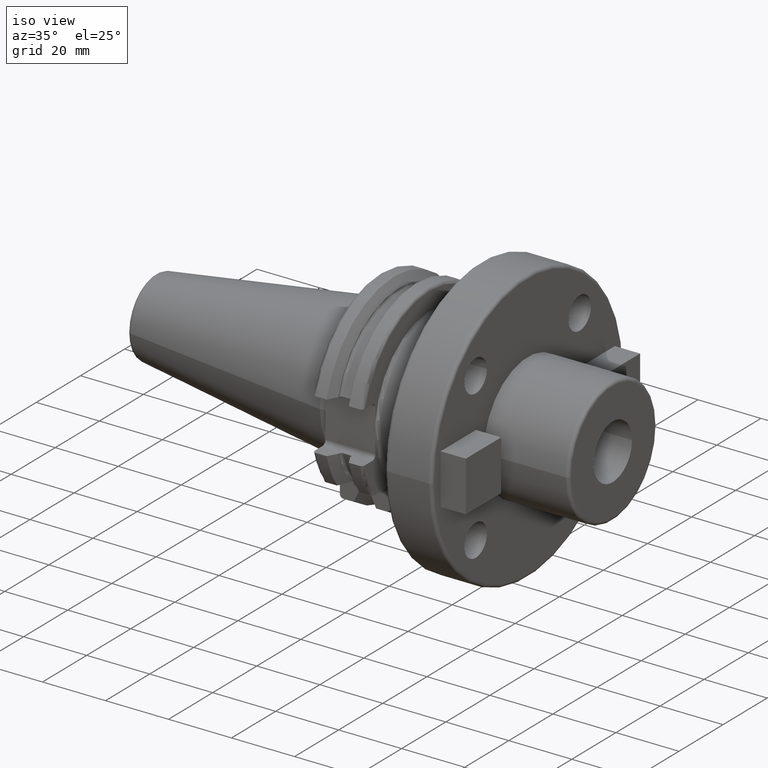
[diagram: clean part render]
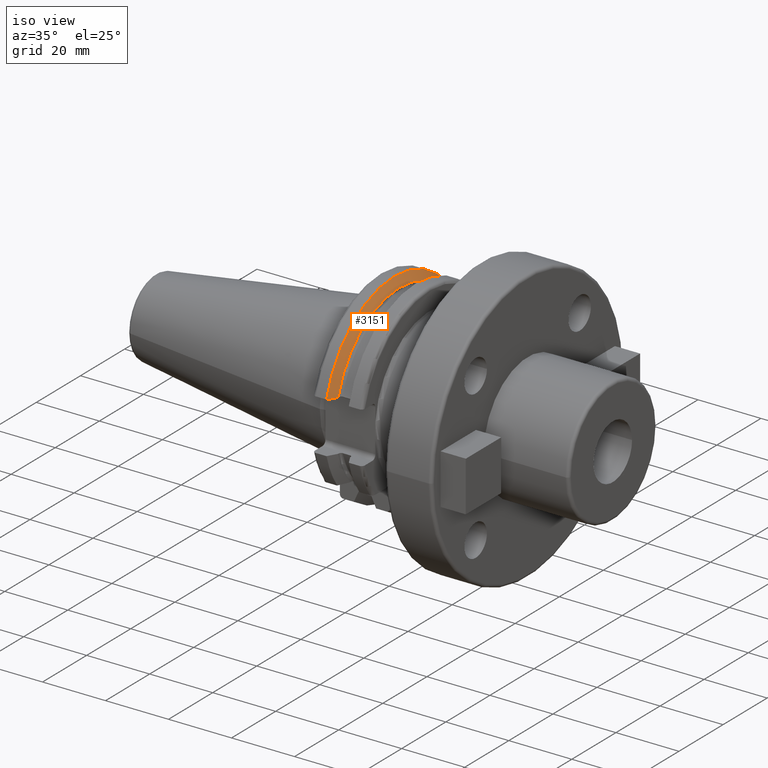
[diagram: same view with one face highlighted and labeled with its STEP entity id]
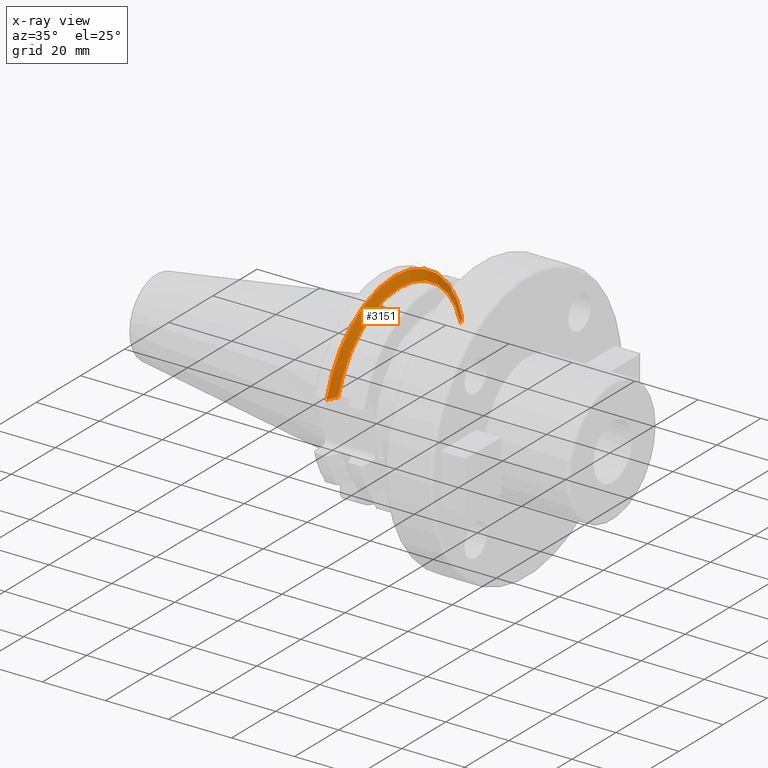
[diagram: x-ray of the same camera — body ghosted, the highlighted face saturated]
A machine part, iso view. The second image highlights one B-rep face of the part: STEP entity #3151.
The next image is the same camera in x-ray: the body ghosted, the highlighted face saturated — about 7% of this face is hidden behind the body in this view.
In plain terms, the highlighted conical surface has half-angle 60 deg.
Its self-contained STEP definition (entity closure, byte-faithful):
#871=CARTESIAN_POINT('',(7.645946479578E0,0.E0,0.E0));
#872=DIRECTION('',(1.E0,0.E0,0.E0));
#873=DIRECTION('',(0.E0,9.669363825036E-1,2.550177095632E-1));
#874=AXIS2_PLACEMENT_3D('',#871,#872,#873);
#898=CARTESIAN_POINT('',(7.645946479578E0,3.071231684927E1,8.1E0));
#899=CARTESIAN_POINT('',(7.831754864835E0,3.037948258059E1,8.1E0));
#900=CARTESIAN_POINT('',(8.199252814970E0,2.972048825911E1,8.1E0));
#901=CARTESIAN_POINT('',(8.738047920141E0,2.875212438619E1,8.1E0));
#902=CARTESIAN_POINT('',(9.089058006747E0,2.811971443922E1,8.1E0));
#903=CARTESIAN_POINT('',(9.2625E0,2.780681820245E1,8.1E0));
#905=CARTESIAN_POINT('',(9.2625E0,-2.780681820245E1,8.1E0));
#906=CARTESIAN_POINT('',(9.089138247115E0,-2.811956968242E1,8.1E0));
#907=CARTESIAN_POINT('',(8.738235514848E0,-2.875178670793E1,8.1E0));
#908=CARTESIAN_POINT('',(8.199445066245E0,-2.972014324708E1,8.1E0));
#909=CARTESIAN_POINT('',(7.831837395590E0,-3.037933474515E1,8.1E0));
#910=CARTESIAN_POINT('',(7.645946479578E0,-3.071231684927E1,8.1E0));
#920=CARTESIAN_POINT('',(9.2625E0,0.E0,0.E0));
#921=DIRECTION('',(1.E0,0.E0,0.E0));
#922=DIRECTION('',(0.E0,9.600957415706E-1,2.796715341576E-1));
#923=AXIS2_PLACEMENT_3D('',#920,#921,#922);
#1704=CARTESIAN_POINT('',(9.2625E0,2.780681820245E1,8.1E0));
#1706=VERTEX_POINT('',#1704);
#1716=CARTESIAN_POINT('',(9.2625E0,-2.780681820245E1,8.1E0));
#1718=VERTEX_POINT('',#1716);
#1758=VERTEX_POINT('',#898);
#1759=VERTEX_POINT('',#910);
#3139=CARTESIAN_POINT('',(8.454223239789E0,0.E0,0.E0));
#3140=DIRECTION('',(-1.E0,0.E0,0.E0));
#3141=DIRECTION('',(0.E0,1.E0,0.E0));
#3142=AXIS2_PLACEMENT_3D('',#3139,#3140,#3141);
#3143=CONICAL_SURFACE('',#3142,3.036252358474E1,6.E1);
#3144=ORIENTED_EDGE('',*,*,#2277,.T.);
#3146=ORIENTED_EDGE('',*,*,#3145,.T.);
#3147=ORIENTED_EDGE('',*,*,#2315,.T.);
#3148=ORIENTED_EDGE('',*,*,#3119,.F.);
#3149=EDGE_LOOP('',(#3144,#3146,#3147,#3148));
#3150=FACE_OUTER_BOUND('',#3149,.F.);
#3151=ADVANCED_FACE('',(#3150),#3143,.T.);
#875=CIRCLE('',#874,3.17625E1);
#904=B_SPLINE_CURVE_WITH_KNOTS('',3,(#898,#899,#900,#901,#902,#903),
.UNSPECIFIED.,.F.,.F.,(4,1,1,4),(0.E0,3.333333333333E-1,6.666666666667E-1,1.E0),
.UNSPECIFIED.);
#911=B_SPLINE_CURVE_WITH_KNOTS('',3,(#905,#906,#907,#908,#909,#910),
.UNSPECIFIED.,.F.,.F.,(4,1,1,4),(0.E0,3.333333333333E-1,6.666666666667E-1,1.E0),
.UNSPECIFIED.);
#924=CIRCLE('',#923,2.896254716948E1);
#2277=EDGE_CURVE('',#1758,#1706,#904,.T.);
#2315=EDGE_CURVE('',#1718,#1759,#911,.T.);
#3119=EDGE_CURVE('',#1758,#1759,#875,.T.);
#3145=EDGE_CURVE('',#1706,#1718,#924,.T.);